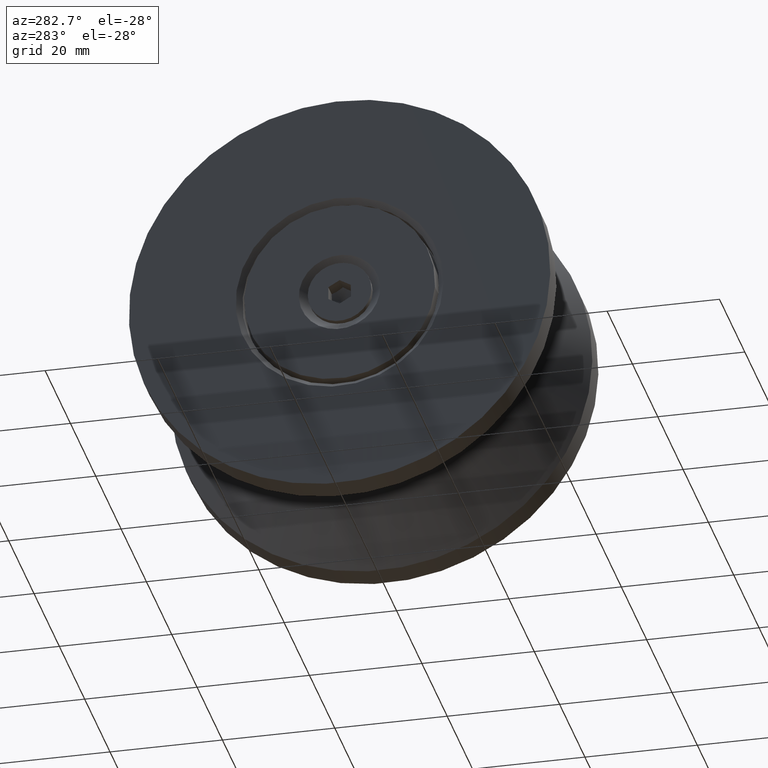
[diagram: clean part render]
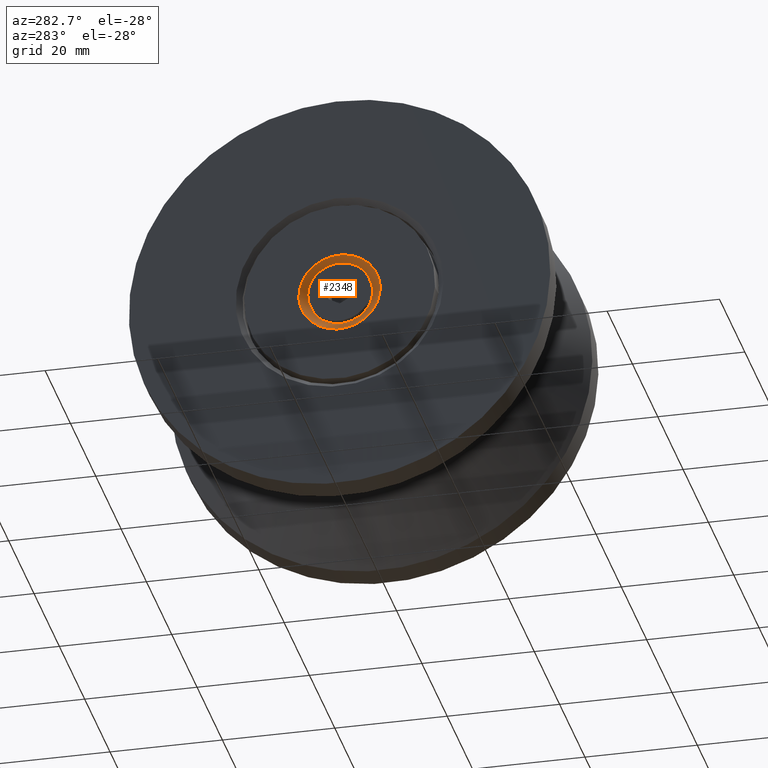
[diagram: same view with one face highlighted and labeled with its STEP entity id]
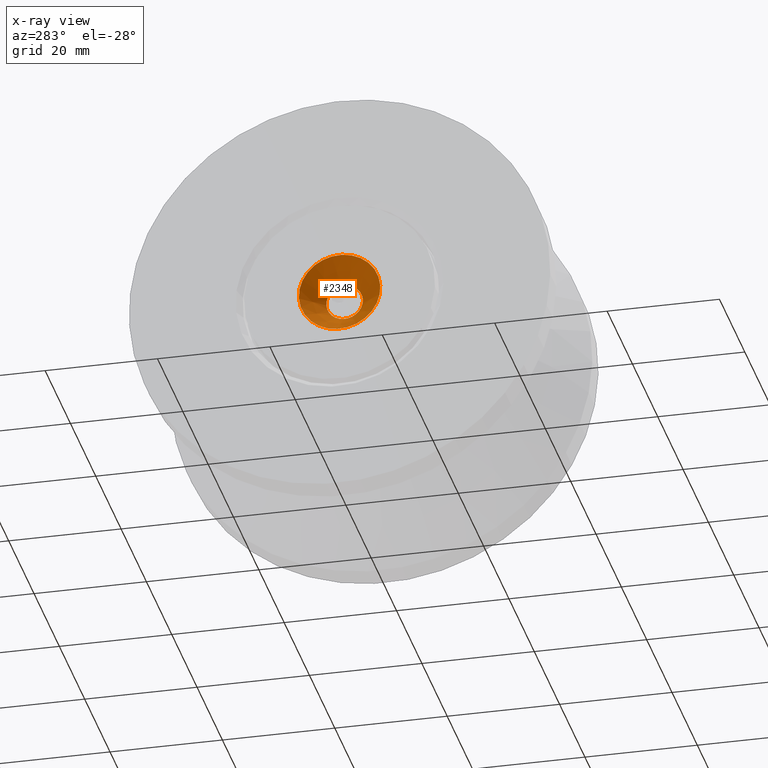
[diagram: x-ray of the same camera — body ghosted, the highlighted face saturated]
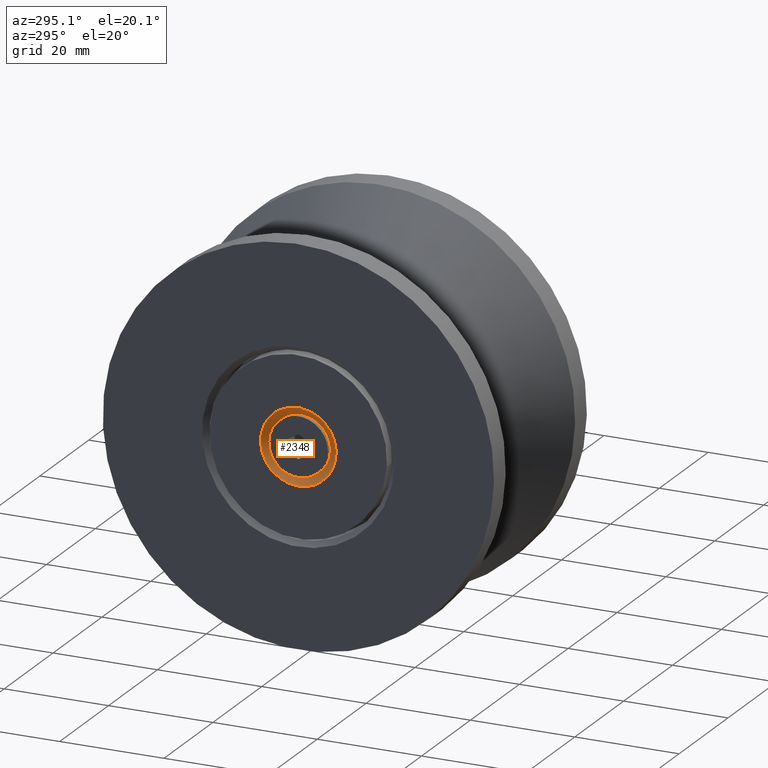
[diagram: same view with one face highlighted and labeled with its STEP entity id]
A machine part, auxiliary view. The second image highlights one B-rep face of the part: STEP entity #2348.
The next image is the same camera in x-ray: the body ghosted, the highlighted face saturated — about 0% of this face is hidden behind the body in this view.
A second angle (auxiliary view) of the same face is appended — the face is thin or edge-on in the first view.
In plain terms, the highlighted conical surface has half-angle 45 deg.
Its self-contained STEP definition (entity closure, byte-faithful):
#218=CONICAL_SURFACE('',#2838,5.25,0.785398163397448);
#359=LINE('',#4957,#447);
#447=VECTOR('',#3420,5.25);
#603=FACE_OUTER_BOUND('',#768,.T.);
#768=EDGE_LOOP('',(#2051,#2052,#2053,#2054));
#942=CIRCLE('',#2839,7.25);
#943=CIRCLE('',#2840,3.25);
#1151=VERTEX_POINT('',#4954);
#1152=VERTEX_POINT('',#4956);
#1459=EDGE_CURVE('',#1151,#1151,#942,.T.);
#1460=EDGE_CURVE('',#1151,#1152,#359,.T.);
#1461=EDGE_CURVE('',#1152,#1152,#943,.T.);
#2051=ORIENTED_EDGE('',*,*,#1459,.F.);
#2052=ORIENTED_EDGE('',*,*,#1460,.T.);
#2053=ORIENTED_EDGE('',*,*,#1461,.F.);
#2054=ORIENTED_EDGE('',*,*,#1460,.F.);
#2348=ADVANCED_FACE('',(#603),#218,.F.);
#2838=AXIS2_PLACEMENT_3D('',#4953,#3416,#3417);
#2839=AXIS2_PLACEMENT_3D('',#4955,#3418,#3419);
#2840=AXIS2_PLACEMENT_3D('',#4958,#3421,#3422);
#3416=DIRECTION('center_axis',(1.,0.,0.));
#3417=DIRECTION('ref_axis',(0.,0.,-1.));
#3418=DIRECTION('center_axis',(-1.,0.,0.));
#3419=DIRECTION('ref_axis',(0.,0.,-1.));
#3420=DIRECTION('',(-0.707106781186547,8.65956056235493E-17,-0.707106781186547));
#3421=DIRECTION('center_axis',(1.,0.,0.));
#3422=DIRECTION('ref_axis',(0.,0.,-1.));
#4953=CARTESIAN_POINT('Origin',(2.,0.,0.));
#4954=CARTESIAN_POINT('',(4.,-8.87868929381831E-16,7.25));
#4955=CARTESIAN_POINT('Origin',(4.,0.,0.));
#4956=CARTESIAN_POINT('',(-2.22044604925031E-15,-3.9801020972289E-16,3.25));
#4957=CARTESIAN_POINT('',(2.,-6.42939569552361E-16,5.25));
#4958=CARTESIAN_POINT('Origin',(-1.66533453693773E-15,0.,0.));